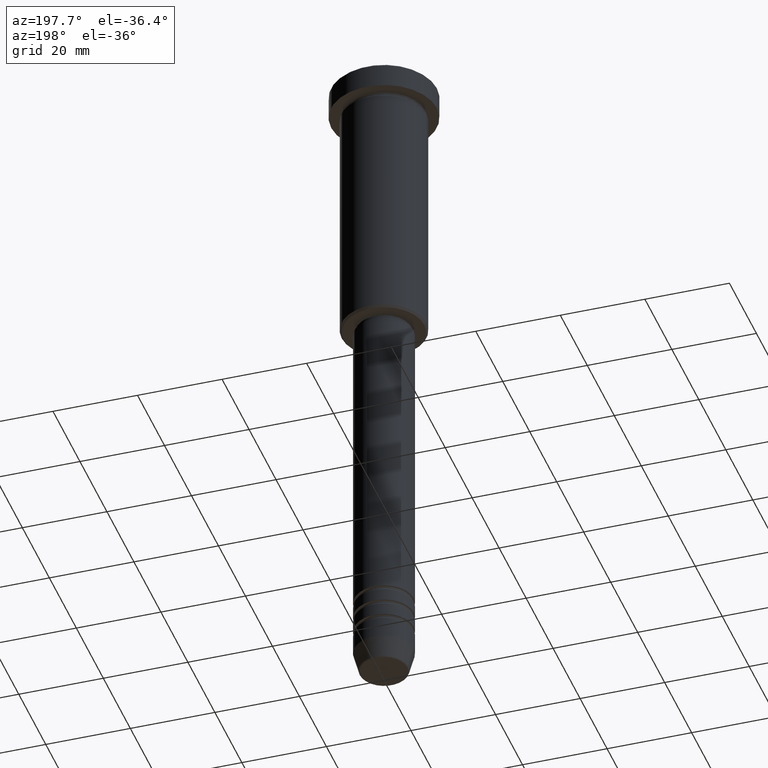
[diagram: clean part render]
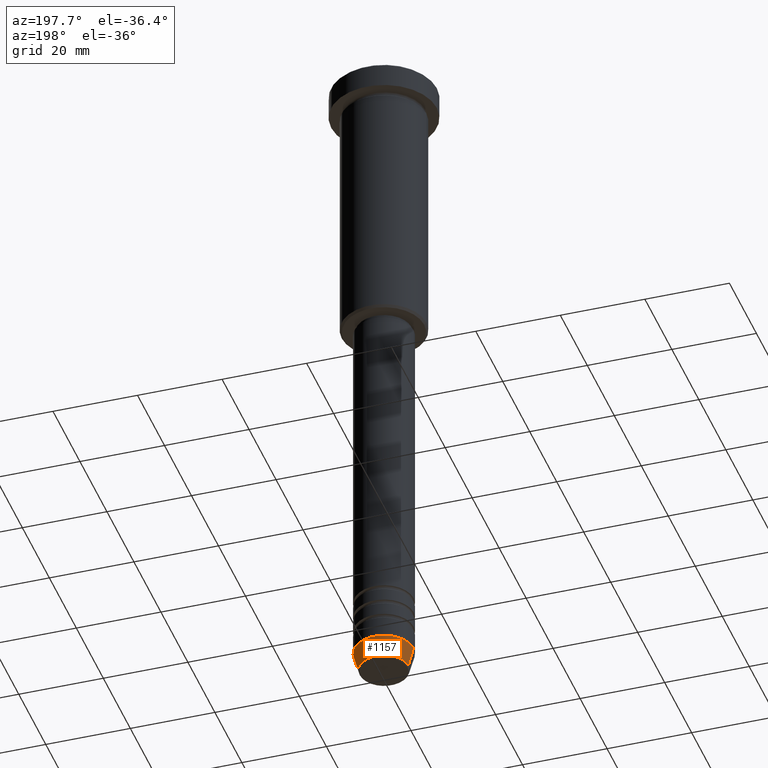
[diagram: same view with one face highlighted and labeled with its STEP entity id]
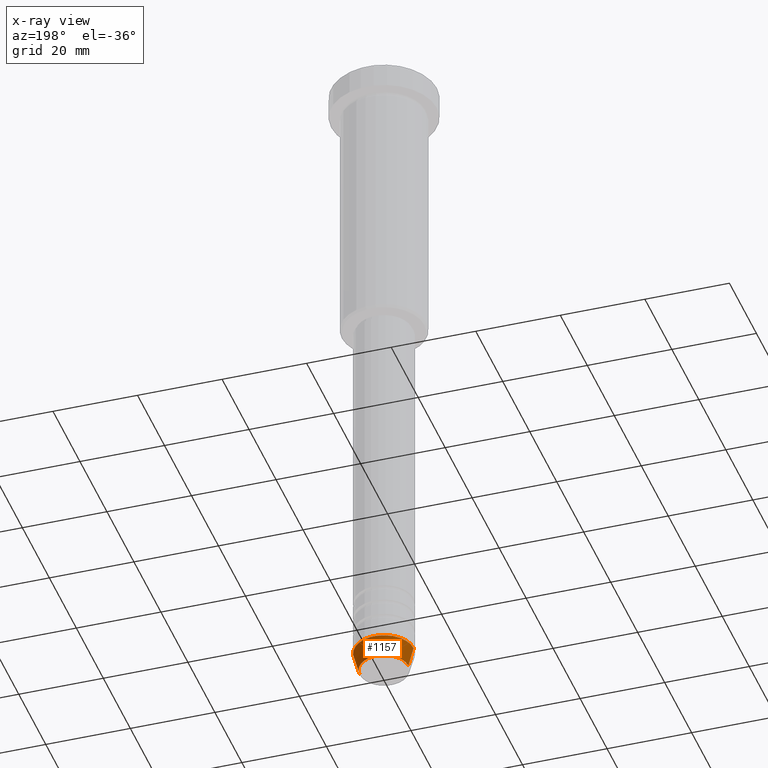
[diagram: x-ray of the same camera — body ghosted, the highlighted face saturated]
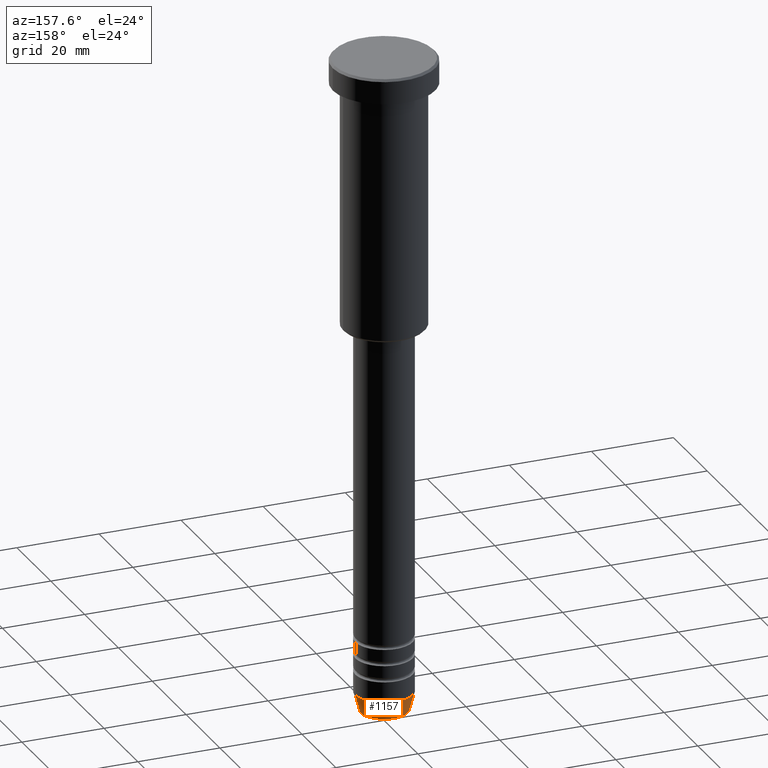
[diagram: same view with one face highlighted and labeled with its STEP entity id]
A machine part, auxiliary view. The second image highlights one B-rep face of the part: STEP entity #1157.
The next image is the same camera in x-ray: the body ghosted, the highlighted face saturated — about 0% of this face is hidden behind the body in this view.
A second angle (auxiliary view) of the same face is appended — the face is thin or edge-on in the first view.
In plain terms, the highlighted conical surface has half-angle 15 deg.
Its self-contained STEP definition (entity closure, byte-faithful):
#10 = FACE_OUTER_BOUND ( 'NONE', #562, .T. ) ;
#112 = AXIS2_PLACEMENT_3D ( 'NONE', #382, #1136, #752 ) ;
#124 = CARTESIAN_POINT ( 'NONE',  ( -7.000000000000000000, 8.572527594031473190E-16, -156.0000000000000284 ) ) ;
#205 = CARTESIAN_POINT ( 'NONE',  ( 5.759553456999435994, 0.000000000000000000, -160.6294095225512706 ) ) ;
#218 = DIRECTION ( 'NONE',  ( 0.2588190451025213501, 0.000000000000000000, 0.9659258262890680902 ) ) ;
#223 = LINE ( 'NONE', #794, #654 ) ;
#242 = CIRCLE ( 'NONE', #112, 7.000000000000000000 ) ;
#250 = EDGE_CURVE ( 'NONE', #454, #401, #223, .T. ) ;
#358 = AXIS2_PLACEMENT_3D ( 'NONE', #944, #663, #668 ) ;
#366 = CARTESIAN_POINT ( 'NONE',  ( 0.000000000000000000, 0.000000000000000000, -156.0000000000000284 ) ) ;
#380 = ORIENTED_EDGE ( 'NONE', *, *, #1096, .T. ) ;
#382 = CARTESIAN_POINT ( 'NONE',  ( 0.000000000000000000, 0.000000000000000000, -156.0000000000000284 ) ) ;
#401 = VERTEX_POINT ( 'NONE', #538 ) ;
#445 = DIRECTION ( 'NONE',  ( -0.2588190451025213501, 3.169619151431772337E-17, 0.9659258262890680902 ) ) ;
#454 = VERTEX_POINT ( 'NONE', #205 ) ;
#466 = CARTESIAN_POINT ( 'NONE',  ( -5.759553456999435994, 7.812973149831951773E-16, -160.6294095225512706 ) ) ;
#468 = CARTESIAN_POINT ( 'NONE',  ( -7.000000000000000000, 8.572527594031473190E-16, -156.0000000000000284 ) ) ;
#506 = AXIS2_PLACEMENT_3D ( 'NONE', #366, #734, #728 ) ;
#538 = CARTESIAN_POINT ( 'NONE',  ( 7.000000000000000000, 0.000000000000000000, -156.0000000000000284 ) ) ;
#562 = EDGE_LOOP ( 'NONE', ( #380, #592, #1033, #680 ) ) ;
#592 = ORIENTED_EDGE ( 'NONE', *, *, #1028, .T. ) ;
#628 = VERTEX_POINT ( 'NONE', #466 ) ;
#654 = VECTOR ( 'NONE', #218, 1000.000000000000000 ) ;
#663 = DIRECTION ( 'NONE',  ( -0.000000000000000000, -0.000000000000000000, 1.000000000000000000 ) ) ;
#668 = DIRECTION ( 'NONE',  ( 1.000000000000000000, 0.000000000000000000, 0.000000000000000000 ) ) ;
#680 = ORIENTED_EDGE ( 'NONE', *, *, #250, .F. ) ;
#728 = DIRECTION ( 'NONE',  ( 1.000000000000000000, 0.000000000000000000, 0.000000000000000000 ) ) ;
#734 = DIRECTION ( 'NONE',  ( -0.000000000000000000, -0.000000000000000000, 1.000000000000000000 ) ) ;
#752 = DIRECTION ( 'NONE',  ( 1.000000000000000000, 0.000000000000000000, 0.000000000000000000 ) ) ;
#794 = CARTESIAN_POINT ( 'NONE',  ( 7.000000000000000000, 0.000000000000000000, -156.0000000000000284 ) ) ;
#911 = LINE ( 'NONE', #468, #918 ) ;
#918 = VECTOR ( 'NONE', #445, 1000.000000000000000 ) ;
#944 = CARTESIAN_POINT ( 'NONE',  ( 0.000000000000000000, 0.000000000000000000, -160.6294095225512706 ) ) ;
#953 = CONICAL_SURFACE ( 'NONE', #506, 7.000000000000000000, 0.2617993877991500740 ) ;
#1028 = EDGE_CURVE ( 'NONE', #628, #1103, #911, .T. ) ;
#1033 = ORIENTED_EDGE ( 'NONE', *, *, #1067, .F. ) ;
#1046 = CIRCLE ( 'NONE', #358, 5.759553456999435994 ) ;
#1067 = EDGE_CURVE ( 'NONE', #401, #1103, #242, .T. ) ;
#1096 = EDGE_CURVE ( 'NONE', #454, #628, #1046, .T. ) ;
#1103 = VERTEX_POINT ( 'NONE', #124 ) ;
#1136 = DIRECTION ( 'NONE',  ( -0.000000000000000000, -0.000000000000000000, 1.000000000000000000 ) ) ;
#1157 = ADVANCED_FACE ( 'NONE', ( #10 ), #953, .T. ) ;